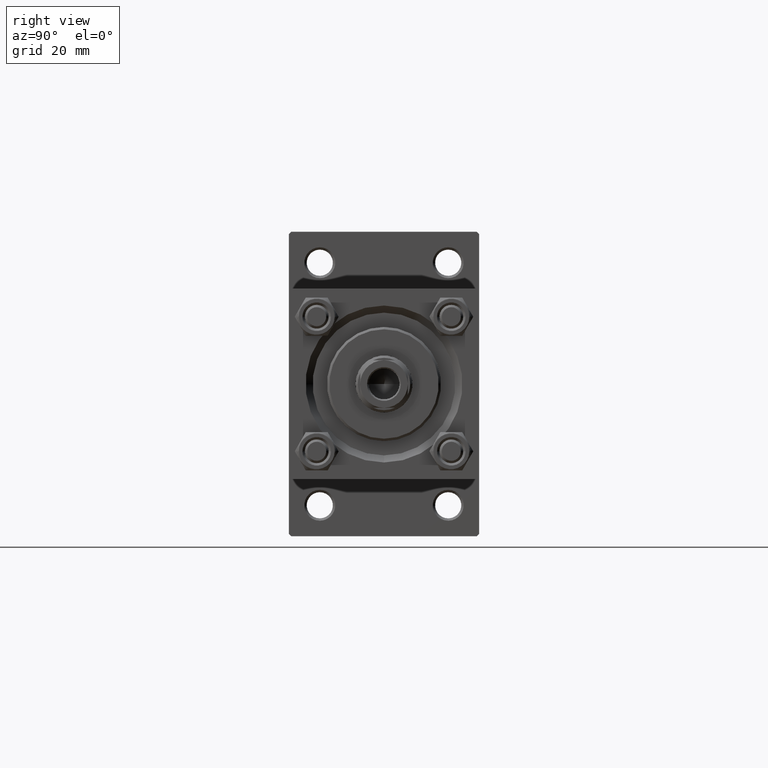
[diagram: clean part render]
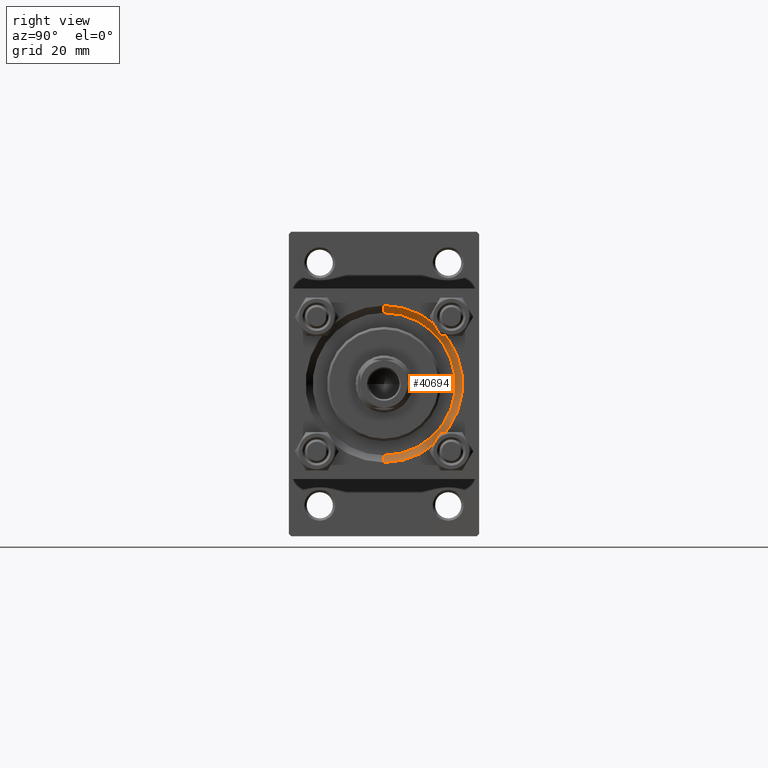
[diagram: same view with one face highlighted and labeled with its STEP entity id]
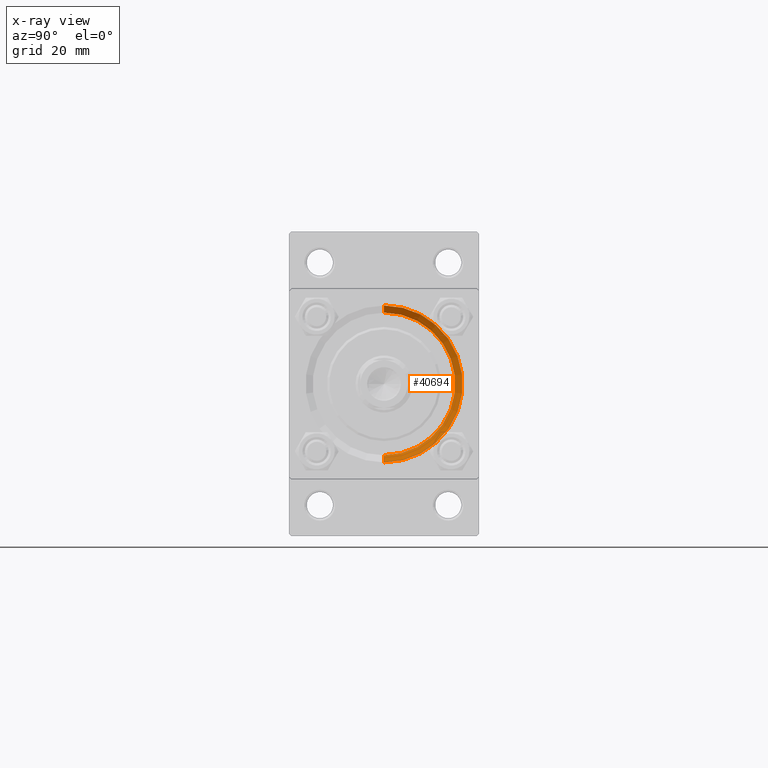
[diagram: x-ray of the same camera — body ghosted, the highlighted face saturated]
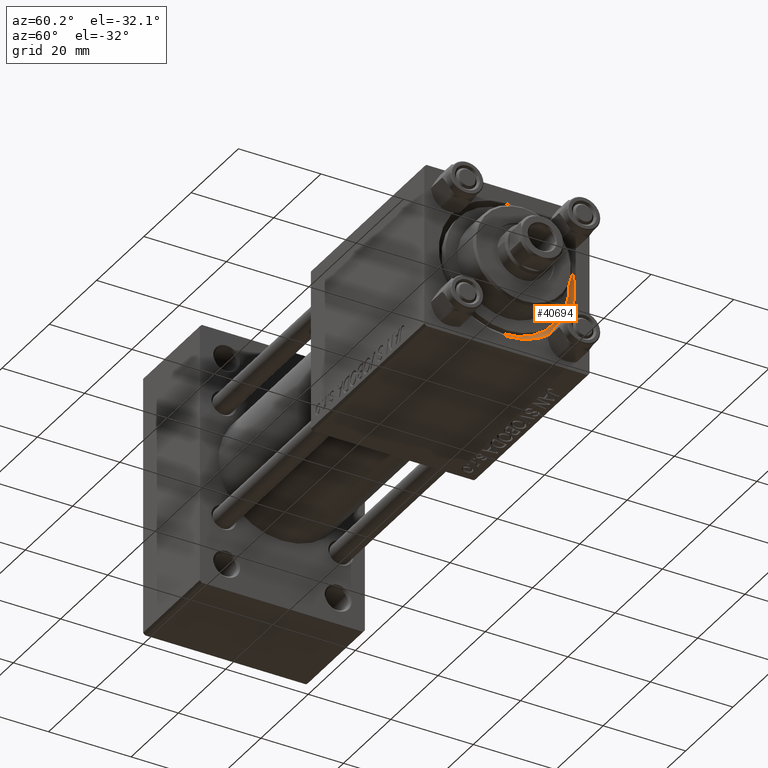
[diagram: same view with one face highlighted and labeled with its STEP entity id]
A machine part, right view. The second image highlights one B-rep face of the part: STEP entity #40694.
The next image is the same camera in x-ray: the body ghosted, the highlighted face saturated — about 0% of this face is hidden behind the body in this view.
A second angle (auxiliary view) of the same face is appended — the face is thin or edge-on in the first view.
In plain terms, the highlighted conical surface has half-angle 45 deg.
Its self-contained STEP definition (entity closure, byte-faithful):
#52 = VERTEX_POINT ( 'NONE', #15909 ) ;
#2004 = CARTESIAN_POINT ( 'NONE',  ( 117.5000000000000142, 1.836970198721029589E-15, 15.00000000000000000 ) ) ;
#5328 = DIRECTION ( 'NONE',  ( 0.000000000000000000, 0.000000000000000000, 1.000000000000000000 ) ) ;
#7385 = AXIS2_PLACEMENT_3D ( 'NONE', #29903, #11444, #45274 ) ;
#9059 = EDGE_CURVE ( 'NONE', #30629, #42689, #38059, .T. ) ;
#11444 = DIRECTION ( 'NONE',  ( 1.000000000000000000, 0.000000000000000000, 0.000000000000000000 ) ) ;
#15909 = CARTESIAN_POINT ( 'NONE',  ( 117.5000000000000142, 0.000000000000000000, -15.00000000000000000 ) ) ;
#17645 = AXIS2_PLACEMENT_3D ( 'NONE', #36740, #21095, #33700 ) ;
#18391 = LINE ( 'NONE', #45125, #31132 ) ;
#18538 = FACE_OUTER_BOUND ( 'NONE', #38388, .T. ) ;
#20204 = CIRCLE ( 'NONE', #22660, 16.49999999999998579 ) ;
#21095 = DIRECTION ( 'NONE',  ( 1.000000000000000000, 0.000000000000000000, 0.000000000000000000 ) ) ;
#21625 = CARTESIAN_POINT ( 'NONE',  ( 119.0000000000000142, 0.000000000000000000, -16.49999999999998579 ) ) ;
#22660 = AXIS2_PLACEMENT_3D ( 'NONE', #24511, #39889, #5328 ) ;
#23102 = ORIENTED_EDGE ( 'NONE', *, *, #34141, .F. ) ;
#23219 = EDGE_CURVE ( 'NONE', #52, #39524, #18391, .T. ) ;
#24511 = CARTESIAN_POINT ( 'NONE',  ( 119.0000000000000142, 0.000000000000000000, 0.000000000000000000 ) ) ;
#26397 = CARTESIAN_POINT ( 'NONE',  ( 119.0000000000000142, 2.020667218593131128E-15, 16.49999999999998579 ) ) ;
#26466 = CARTESIAN_POINT ( 'NONE',  ( 117.5000000000000142, 1.836970198721029589E-15, 15.00000000000000000 ) ) ;
#26709 = DIRECTION ( 'NONE',  ( 0.7071067811865507924, 0.000000000000000000, -0.7071067811865441310 ) ) ;
#29903 = CARTESIAN_POINT ( 'NONE',  ( 117.5000000000000142, 0.000000000000000000, 0.000000000000000000 ) ) ;
#30629 = VERTEX_POINT ( 'NONE', #2004 ) ;
#31132 = VECTOR ( 'NONE', #26709, 1000.000000000000114 ) ;
#31547 = CONICAL_SURFACE ( 'NONE', #7385, 15.00000000000000000, 0.7853981633974437271 ) ;
#32950 = CIRCLE ( 'NONE', #17645, 15.00000000000000000 ) ;
#33131 = ORIENTED_EDGE ( 'NONE', *, *, #9059, .F. ) ;
#33700 = DIRECTION ( 'NONE',  ( 0.000000000000000000, 0.000000000000000000, 1.000000000000000000 ) ) ;
#34141 = EDGE_CURVE ( 'NONE', #42689, #39524, #20204, .T. ) ;
#35932 = VECTOR ( 'NONE', #42098, 1000.000000000000114 ) ;
#36740 = CARTESIAN_POINT ( 'NONE',  ( 117.5000000000000142, 0.000000000000000000, 0.000000000000000000 ) ) ;
#38059 = LINE ( 'NONE', #26466, #35932 ) ;
#38388 = EDGE_LOOP ( 'NONE', ( #33131, #42706, #47950, #23102 ) ) ;
#39524 = VERTEX_POINT ( 'NONE', #21625 ) ;
#39889 = DIRECTION ( 'NONE',  ( -1.000000000000000000, -0.000000000000000000, -0.000000000000000000 ) ) ;
#40694 = ADVANCED_FACE ( 'NONE', ( #18538 ), #31547, .F. ) ;
#42098 = DIRECTION ( 'NONE',  ( 0.7071067811865507924, 8.659560562354892183E-17, 0.7071067811865441310 ) ) ;
#42689 = VERTEX_POINT ( 'NONE', #26397 ) ;
#42706 = ORIENTED_EDGE ( 'NONE', *, *, #49243, .F. ) ;
#45125 = CARTESIAN_POINT ( 'NONE',  ( 117.5000000000000142, 0.000000000000000000, -15.00000000000000000 ) ) ;
#45274 = DIRECTION ( 'NONE',  ( 0.000000000000000000, 0.000000000000000000, -1.000000000000000000 ) ) ;
#47950 = ORIENTED_EDGE ( 'NONE', *, *, #23219, .T. ) ;
#49243 = EDGE_CURVE ( 'NONE', #52, #30629, #32950, .T. ) ;